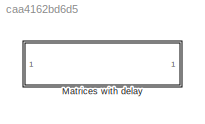
MODEL slx_caa4162bd6d5
KIND model
CONFIG AbsTol = auto
CONFIG EnableMultiTasking = off
CONFIG FixedStep = auto
CONFIG MaxStep = auto
CONFIG MinStep = auto
CONFIG RelTol = 1e-3
CONFIG SampleTimeConstraint = Unconstrained
CONFIG SolverName = VariableStepAuto
CONFIG StartTime = 0.0
CONFIG StopTime = 10.0
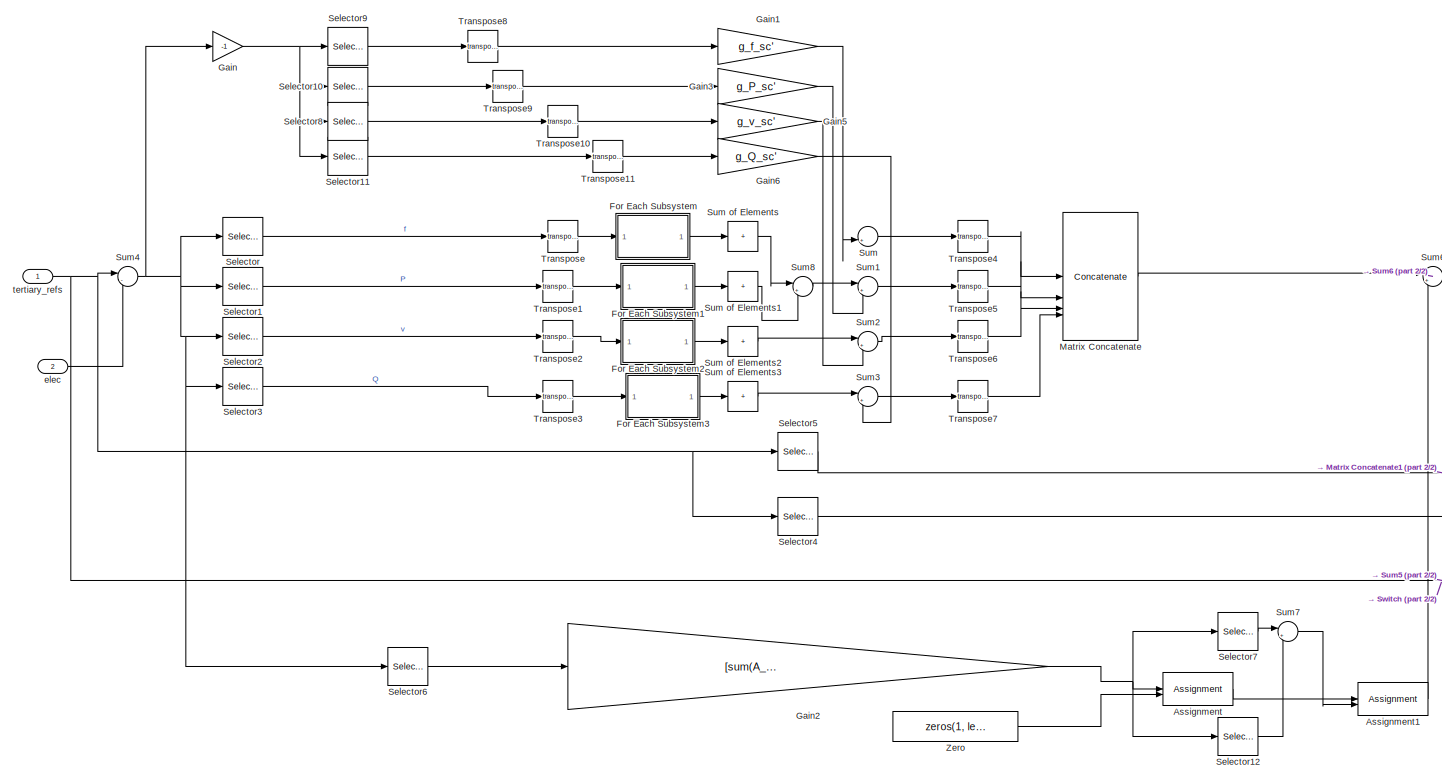
[diagram: Matrices with delay - part 1/2, center side, full height]
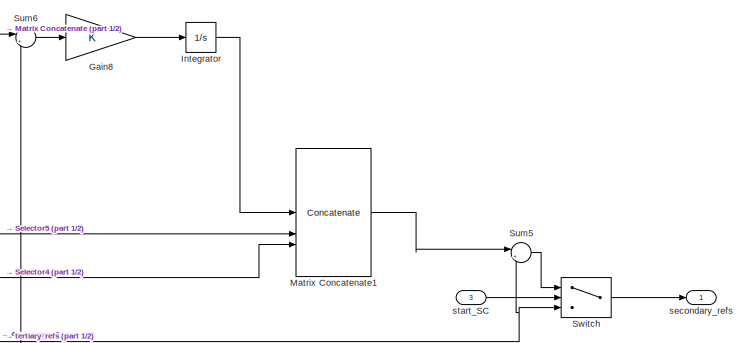
[diagram: Matrices with delay - part 2/2, middle right region]
BLOCK [SubSystem] Matrices with delay
  NameLocation = top
  VariantControl = Matrices with delay
BLOCK [Assignment] Matrices with delay/Assignment
  DiagnosticForDimensions = Warning
  IndexOptions = Index vector (dialog),Assign all
  Indices = 1,1
  NumberOfDimensions = 2
  OutputSizes = 1,1
BLOCK [Assignment] Matrices with delay/Assignment1
  DiagnosticForDimensions = Warning
  IndexOptions = Index vector (dialog),Assign all
  Indices = 2,1
  NumberOfDimensions = 2
  OutputSizes = 1,1
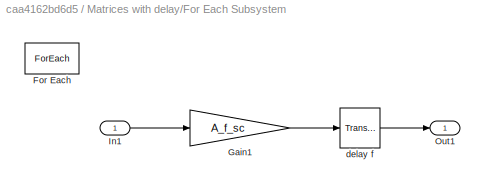
BLOCK [SubSystem] Matrices with delay/For Each Subsystem
  TreatAsAtomicUnit = on
BLOCK [ForEach] Matrices with delay/For Each Subsystem/For Each
  DisableCoverage = on
  IterateSubsysMaskParameter = on,on
  SubsysMaskParameterIterationDimension = 2,2
BLOCK [Gain] Matrices with delay/For Each Subsystem/Gain1
  Gain = A_f_sc
  Multiplication = Matrix(K*u)
BLOCK [Inport] Matrices with delay/For Each Subsystem/In1
  Partition = on
  PartitionDimension = 1
  PartitionOffset = 0
  PartitionWidth = 1
BLOCK [Outport] Matrices with delay/For Each Subsystem/Out1
  ConcatenationDimension = 2
BLOCK [TransportDelay] Matrices with delay/For Each Subsystem/delay f
  DelayTime = delayM
  PadeOrder = 3
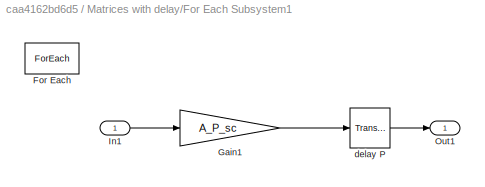
BLOCK [SubSystem] Matrices with delay/For Each Subsystem1
  TreatAsAtomicUnit = on
BLOCK [ForEach] Matrices with delay/For Each Subsystem1/For Each
  DisableCoverage = on
  IterateSubsysMaskParameter = on,on
  SubsysMaskParameterIterationDimension = 2,2
BLOCK [Gain] Matrices with delay/For Each Subsystem1/Gain1
  Gain = A_P_sc
  Multiplication = Matrix(K*u)
BLOCK [Inport] Matrices with delay/For Each Subsystem1/In1
  Partition = on
  PartitionDimension = 1
  PartitionOffset = 0
  PartitionWidth = 1
BLOCK [Outport] Matrices with delay/For Each Subsystem1/Out1
  ConcatenationDimension = 2
BLOCK [TransportDelay] Matrices with delay/For Each Subsystem1/delay P
  DelayTime = delayM
  PadeOrder = 3
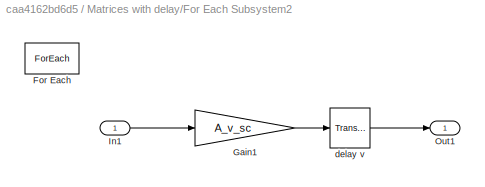
BLOCK [SubSystem] Matrices with delay/For Each Subsystem2
  TreatAsAtomicUnit = on
BLOCK [ForEach] Matrices with delay/For Each Subsystem2/For Each
  DisableCoverage = on
  IterateSubsysMaskParameter = on,on
  SubsysMaskParameterIterationDimension = 2,2
BLOCK [Gain] Matrices with delay/For Each Subsystem2/Gain1
  Gain = A_v_sc
  Multiplication = Matrix(K*u)
BLOCK [Inport] Matrices with delay/For Each Subsystem2/In1
  Partition = on
  PartitionDimension = 1
  PartitionOffset = 0
  PartitionWidth = 1
BLOCK [Outport] Matrices with delay/For Each Subsystem2/Out1
  ConcatenationDimension = 2
BLOCK [TransportDelay] Matrices with delay/For Each Subsystem2/delay v
  DelayTime = delayM
  PadeOrder = 3
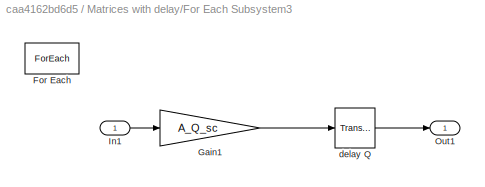
BLOCK [SubSystem] Matrices with delay/For Each Subsystem3
  TreatAsAtomicUnit = on
BLOCK [ForEach] Matrices with delay/For Each Subsystem3/For Each
  DisableCoverage = on
  IterateSubsysMaskParameter = on,on
  SubsysMaskParameterIterationDimension = 2,2
BLOCK [Gain] Matrices with delay/For Each Subsystem3/Gain1
  Gain = A_Q_sc
  Multiplication = Matrix(K*u)
BLOCK [Inport] Matrices with delay/For Each Subsystem3/In1
  Partition = on
  PartitionDimension = 1
  PartitionOffset = 0
  PartitionWidth = 1
BLOCK [Outport] Matrices with delay/For Each Subsystem3/Out1
  ConcatenationDimension = 2
BLOCK [TransportDelay] Matrices with delay/For Each Subsystem3/delay Q
  DelayTime = delayM
  PadeOrder = 3
BLOCK [Gain] Matrices with delay/Gain
  Gain = -1
BLOCK [Gain] Matrices with delay/Gain1
  Gain = g_f_sc'
BLOCK [Gain] Matrices with delay/Gain2
  Gain = [sum(A_f_sc, 2)'; sum(A_P_sc, 2)'; sum(A_v_sc, 2)'; sum(A_Q_sc, 2)']
BLOCK [Gain] Matrices with delay/Gain3
  Gain = g_P_sc'
BLOCK [Gain] Matrices with delay/Gain5
  Gain = g_v_sc'
BLOCK [Gain] Matrices with delay/Gain6
  Gain = g_Q_sc'
BLOCK [Gain] Matrices with delay/Gain8
BLOCK [Integrator] Matrices with delay/Integrator
BLOCK [Concatenate] Matrices with delay/Matrix Concatenate
  Mode = Multidimensional array
  NumInputs = 4
BLOCK [Concatenate] Matrices with delay/Matrix Concatenate1
  Mode = Multidimensional array
  NumInputs = 3
BLOCK [Selector] Matrices with delay/Selector
  IndexOptions = Index vector (dialog),Select all
  Indices = 1,1
  InputPortWidth = 3
  NumberOfDimensions = 2
  OutputSizes = 1,1
BLOCK [Selector] Matrices with delay/Selector1
  IndexOptions = Index vector (dialog),Select all
  Indices = 2,1
  InputPortWidth = 3
  NumberOfDimensions = 2
  OutputSizes = 1,1
BLOCK [Selector] Matrices with delay/Selector10
  IndexOptions = Index vector (dialog),Select all
  Indices = 2,1
  InputPortWidth = 3
  NumberOfDimensions = 2
  OutputSizes = 1,1
BLOCK [Selector] Matrices with delay/Selector11
  IndexOptions = Index vector (dialog),Select all
  Indices = 4,1
  InputPortWidth = 3
  NumberOfDimensions = 2
  OutputSizes = 1,1
BLOCK [Selector] Matrices with delay/Selector12
  IndexOptions = Index vector (dialog),Select all
  Indices = 2,1
  InputPortWidth = 3
  NumberOfDimensions = 2
  OutputSizes = 1,1
BLOCK [Selector] Matrices with delay/Selector2
  IndexOptions = Index vector (dialog),Select all
  Indices = 3,1
  InputPortWidth = 3
  NumberOfDimensions = 2
  OutputSizes = 1,1
BLOCK [Selector] Matrices with delay/Selector3
  IndexOptions = Index vector (dialog),Select all
  Indices = 4,1
  InputPortWidth = 3
  NumberOfDimensions = 2
  OutputSizes = 1,1
BLOCK [Selector] Matrices with delay/Selector4
  IndexOptions = Index vector (dialog),Select all
  Indices = 6,1
  InputPortWidth = 3
  NumberOfDimensions = 2
  OutputSizes = 1,1
BLOCK [Selector] Matrices with delay/Selector5
  IndexOptions = Index vector (dialog),Select all
  Indices = 5,1
  InputPortWidth = 3
  NumberOfDimensions = 2
  OutputSizes = 1,1
BLOCK [Selector] Matrices with delay/Selector6
  IndexOptions = Index vector (dialog),Select all
  Indices = 1:4,1
  InputPortWidth = 3
  NumberOfDimensions = 2
  OutputSizes = 1,1
BLOCK [Selector] Matrices with delay/Selector7
  IndexOptions = Index vector (dialog),Select all
  Indices = 1,1
  InputPortWidth = 3
  NumberOfDimensions = 2
  OutputSizes = 1,1
BLOCK [Selector] Matrices with delay/Selector8
  IndexOptions = Index vector (dialog),Select all
  Indices = 3,1
  InputPortWidth = 3
  NumberOfDimensions = 2
  OutputSizes = 1,1
BLOCK [Selector] Matrices with delay/Selector9
  IndexOptions = Index vector (dialog),Select all
  Indices = 1,1
  InputPortWidth = 3
  NumberOfDimensions = 2
  OutputSizes = 1,1
BLOCK [Sum] Matrices with delay/Sum
  Inputs = |++
BLOCK [Sum] Matrices with delay/Sum of Elements
  CollapseDim = 2
  CollapseMode = Specified dimension
  IconShape = rectangular
  Inputs = +
BLOCK [Sum] Matrices with delay/Sum of Elements1
  CollapseDim = 2
  CollapseMode = Specified dimension
  IconShape = rectangular
  Inputs = +
BLOCK [Sum] Matrices with delay/Sum of Elements2
  CollapseDim = 2
  CollapseMode = Specified dimension
  IconShape = rectangular
  Inputs = +
BLOCK [Sum] Matrices with delay/Sum of Elements3
  CollapseDim = 2
  CollapseMode = Specified dimension
  IconShape = rectangular
  Inputs = +
BLOCK [Sum] Matrices with delay/Sum1
  Inputs = |++
BLOCK [Sum] Matrices with delay/Sum2
  Inputs = |++
BLOCK [Sum] Matrices with delay/Sum3
  Inputs = |++
BLOCK [Sum] Matrices with delay/Sum4
  Inputs = |-+
BLOCK [Sum] Matrices with delay/Sum5
  Inputs = |++
BLOCK [Sum] Matrices with delay/Sum6
  Inputs = |+-
BLOCK [Sum] Matrices with delay/Sum7
  Inputs = |++
BLOCK [Sum] Matrices with delay/Sum8
  Inputs = |++
BLOCK [Switch] Matrices with delay/Switch
  Criteria = u2 > Threshold
  InputSameDT = off
  SaturateOnIntegerOverflow = off
BLOCK [Math] Matrices with delay/Transpose
  Operator = transpose
BLOCK [Math] Matrices with delay/Transpose1
  Operator = transpose
BLOCK [Math] Matrices with delay/Transpose10
  Operator = transpose
BLOCK [Math] Matrices with delay/Transpose11
  Operator = transpose
BLOCK [Math] Matrices with delay/Transpose2
  Operator = transpose
BLOCK [Math] Matrices with delay/Transpose3
  Operator = transpose
BLOCK [Math] Matrices with delay/Transpose4
  Operator = transpose
BLOCK [Math] Matrices with delay/Transpose5
  Operator = transpose
BLOCK [Math] Matrices with delay/Transpose6
  Operator = transpose
BLOCK [Math] Matrices with delay/Transpose7
  Operator = transpose
BLOCK [Math] Matrices with delay/Transpose8
  Operator = transpose
BLOCK [Math] Matrices with delay/Transpose9
  Operator = transpose
BLOCK [Constant] Matrices with delay/Zero
  OutDataTypeStr = Inherit: Inherit via back propagation
  Value = zeros(1, length(buses_lf))
  VectorParams1D = off
BLOCK [Inport] Matrices with delay/elec
  Port = 2
BLOCK [Outport] Matrices with delay/secondary_refs
BLOCK [Inport] Matrices with delay/start_SC
  Port = 3
BLOCK [Inport] Matrices with delay/tertiary_refs
LINE Matrices with delay/Assignment1:1 -> Matrices with delay/Sum6:2
LINE Matrices with delay/Assignment:1 -> Matrices with delay/Assignment1:1
LINE Matrices with delay/For Each Subsystem/Gain1:1 -> Matrices with delay/For Each Subsystem/delay f:1
LINE Matrices with delay/For Each Subsystem/In1:1 -> Matrices with delay/For Each Subsystem/Gain1:1
LINE Matrices with delay/For Each Subsystem/delay f:1 -> Matrices with delay/For Each Subsystem/Out1:1
LINE Matrices with delay/For Each Subsystem1/Gain1:1 -> Matrices with delay/For Each Subsystem1/delay P:1
LINE Matrices with delay/For Each Subsystem1/In1:1 -> Matrices with delay/For Each Subsystem1/Gain1:1
LINE Matrices with delay/For Each Subsystem1/delay P:1 -> Matrices with delay/For Each Subsystem1/Out1:1
LINE Matrices with delay/For Each Subsystem1:1 -> Matrices with delay/Sum of Elements1:1
LINE Matrices with delay/For Each Subsystem2/Gain1:1 -> Matrices with delay/For Each Subsystem2/delay v:1
LINE Matrices with delay/For Each Subsystem2/In1:1 -> Matrices with delay/For Each Subsystem2/Gain1:1
LINE Matrices with delay/For Each Subsystem2/delay v:1 -> Matrices with delay/For Each Subsystem2/Out1:1
LINE Matrices with delay/For Each Subsystem2:1 -> Matrices with delay/Sum of Elements2:1
LINE Matrices with delay/For Each Subsystem3/Gain1:1 -> Matrices with delay/For Each Subsystem3/delay Q:1
LINE Matrices with delay/For Each Subsystem3/In1:1 -> Matrices with delay/For Each Subsystem3/Gain1:1
LINE Matrices with delay/For Each Subsystem3/delay Q:1 -> Matrices with delay/For Each Subsystem3/Out1:1
LINE Matrices with delay/For Each Subsystem3:1 -> Matrices with delay/Sum of Elements3:1
LINE Matrices with delay/For Each Subsystem:1 -> Matrices with delay/Sum of Elements:1
LINE Matrices with delay/Gain1:1 -> Matrices with delay/Sum:2
NET Matrices with delay/Gain2:1 -> Matrices with delay/Assignment:1, Matrices with delay/Selector12:1, Matrices with delay/Selector7:1
LINE Matrices with delay/Gain3:1 -> Matrices with delay/Sum1:2
LINE Matrices with delay/Gain5:1 -> Matrices with delay/Sum2:2
LINE Matrices with delay/Gain6:1 -> Matrices with delay/Sum3:2
LINE Matrices with delay/Gain8:1 -> Matrices with delay/Integrator:1
NET Matrices with delay/Gain:1 -> Matrices with delay/Selector10:1, Matrices with delay/Selector11:1, Matrices with delay/Selector8:1, Matrices with delay/Selector9:1
LINE Matrices with delay/Integrator:1 -> Matrices with delay/Matrix Concatenate1:1
LINE Matrices with delay/Matrix Concatenate1:1 -> Matrices with delay/Sum5:1
LINE Matrices with delay/Matrix Concatenate:1 -> Matrices with delay/Sum6:1
LINE Matrices with delay/Selector10:1 -> Matrices with delay/Transpose9:1
LINE Matrices with delay/Selector11:1 -> Matrices with delay/Transpose11:1
LINE Matrices with delay/Selector12:1 -> Matrices with delay/Sum7:2
LINE Matrices with delay/Selector1:1 -> Matrices with delay/Transpose1:1
LINE Matrices with delay/Selector2:1 -> Matrices with delay/Transpose2:1
LINE Matrices with delay/Selector3:1 -> Matrices with delay/Transpose3:1
LINE Matrices with delay/Selector4:1 -> Matrices with delay/Matrix Concatenate1:3
LINE Matrices with delay/Selector5:1 -> Matrices with delay/Matrix Concatenate1:2
LINE Matrices with delay/Selector6:1 -> Matrices with delay/Gain2:1
LINE Matrices with delay/Selector7:1 -> Matrices with delay/Sum7:1
LINE Matrices with delay/Selector8:1 -> Matrices with delay/Transpose10:1
LINE Matrices with delay/Selector9:1 -> Matrices with delay/Transpose8:1
LINE Matrices with delay/Selector:1 -> Matrices with delay/Transpose:1
LINE Matrices with delay/Sum of Elements1:1 -> Matrices with delay/Sum8:2
LINE Matrices with delay/Sum of Elements2:1 -> Matrices with delay/Sum2:1
LINE Matrices with delay/Sum of Elements3:1 -> Matrices with delay/Sum3:1
LINE Matrices with delay/Sum of Elements:1 -> Matrices with delay/Sum8:1
LINE Matrices with delay/Sum1:1 -> Matrices with delay/Transpose5:1
LINE Matrices with delay/Sum2:1 -> Matrices with delay/Transpose6:1
LINE Matrices with delay/Sum3:1 -> Matrices with delay/Transpose7:1
NET Matrices with delay/Sum4:1 -> Matrices with delay/Gain:1, Matrices with delay/Selector1:1, Matrices with delay/Selector2:1, Matrices with delay/Selector3:1, Matrices with delay/Selector6:1, Matrices with delay/Selector:1
LINE Matrices with delay/Sum5:1 -> Matrices with delay/Switch:1
LINE Matrices with delay/Sum6:1 -> Matrices with delay/Gain8:1
LINE Matrices with delay/Sum7:1 -> Matrices with delay/Assignment1:2
LINE Matrices with delay/Sum8:1 -> Matrices with delay/Sum1:1
LINE Matrices with delay/Sum:1 -> Matrices with delay/Transpose4:1
LINE Matrices with delay/Switch:1 -> Matrices with delay/secondary_refs:1
LINE Matrices with delay/Transpose10:1 -> Matrices with delay/Gain5:1
LINE Matrices with delay/Transpose11:1 -> Matrices with delay/Gain6:1
LINE Matrices with delay/Transpose1:1 -> Matrices with delay/For Each Subsystem1:1
LINE Matrices with delay/Transpose2:1 -> Matrices with delay/For Each Subsystem2:1
LINE Matrices with delay/Transpose3:1 -> Matrices with delay/For Each Subsystem3:1
LINE Matrices with delay/Transpose4:1 -> Matrices with delay/Matrix Concatenate:1
LINE Matrices with delay/Transpose5:1 -> Matrices with delay/Matrix Concatenate:2
LINE Matrices with delay/Transpose6:1 -> Matrices with delay/Matrix Concatenate:3
LINE Matrices with delay/Transpose7:1 -> Matrices with delay/Matrix Concatenate:4
LINE Matrices with delay/Transpose8:1 -> Matrices with delay/Gain1:1
LINE Matrices with delay/Transpose9:1 -> Matrices with delay/Gain3:1
LINE Matrices with delay/Transpose:1 -> Matrices with delay/For Each Subsystem:1
LINE Matrices with delay/Zero:1 -> Matrices with delay/Assignment:2
LINE Matrices with delay/elec:1 -> Matrices with delay/Sum4:2
LINE Matrices with delay/start_SC:1 -> Matrices with delay/Switch:2
NET Matrices with delay/tertiary_refs:1 -> Matrices with delay/Selector4:1, Matrices with delay/Selector5:1, Matrices with delay/Sum4:1, Matrices with delay/Sum5:2, Matrices with delay/Switch:3
note: NET lines group one-source signal fan-out (src -> all destinations, sorted); 1:1 wires keep LINE
